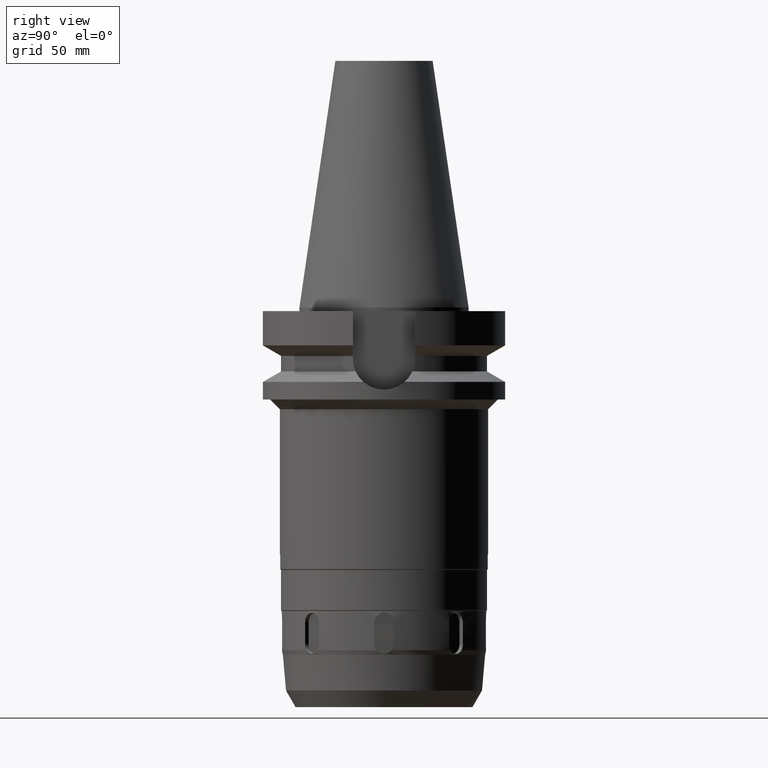
[diagram: clean part render]
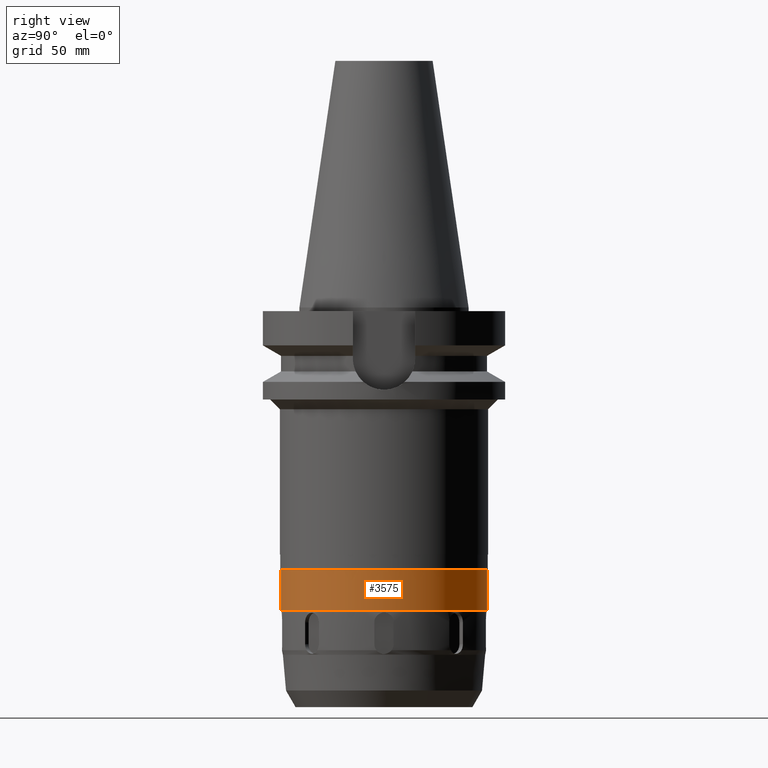
[diagram: same view with one face highlighted and labeled with its STEP entity id]
A machine part, right view. The second image highlights one B-rep face of the part: STEP entity #3575.
In plain terms, the highlighted cylindrical surface (partial cylindrical patch) has radius 42.5 mm, axis along (0, 0, -1).
Its self-contained STEP definition (entity closure, byte-faithful):
#1221=CARTESIAN_POINT('',(0.E0,0.E0,-1.25E2));
#1222=DIRECTION('',(0.E0,0.E0,1.E0));
#1223=DIRECTION('',(0.E0,-1.E0,0.E0));
#1224=AXIS2_PLACEMENT_3D('',#1221,#1222,#1223);
#1252=DIRECTION('',(0.E0,0.E0,-1.E0));
#1253=VECTOR('',#1252,1.665E1);
#1254=CARTESIAN_POINT('',(0.E0,-4.25E1,-1.0835E2));
#1255=LINE('',#1254,#1253);
#1259=DIRECTION('',(0.E0,0.E0,-1.E0));
#1260=VECTOR('',#1259,1.665E1);
#1261=CARTESIAN_POINT('',(0.E0,4.25E1,-1.0835E2));
#1262=LINE('',#1261,#1260);
#1273=CARTESIAN_POINT('',(0.E0,0.E0,-1.0835E2));
#1274=DIRECTION('',(0.E0,0.E0,-1.E0));
#1275=DIRECTION('',(0.E0,1.E0,0.E0));
#1276=AXIS2_PLACEMENT_3D('',#1273,#1274,#1275);
#2646=CARTESIAN_POINT('',(0.E0,4.25E1,-1.25E2));
#2647=VERTEX_POINT('',#2646);
#2648=CARTESIAN_POINT('',(0.E0,-4.25E1,-1.25E2));
#2649=VERTEX_POINT('',#2648);
#2650=CARTESIAN_POINT('',(0.E0,4.25E1,-1.0835E2));
#2651=VERTEX_POINT('',#2650);
#2652=CARTESIAN_POINT('',(0.E0,-4.25E1,-1.0835E2));
#2653=VERTEX_POINT('',#2652);
#3563=CARTESIAN_POINT('',(0.E0,2.634705123686E-14,1.1514E2));
#3564=DIRECTION('',(0.E0,0.E0,-1.E0));
#3565=DIRECTION('',(0.E0,-1.E0,0.E0));
#3566=AXIS2_PLACEMENT_3D('',#3563,#3564,#3565);
#3567=CYLINDRICAL_SURFACE('',#3566,4.25E1);
#3568=ORIENTED_EDGE('',*,*,#3553,.T.);
#3569=ORIENTED_EDGE('',*,*,#3530,.F.);
#3570=ORIENTED_EDGE('',*,*,#3557,.F.);
#3572=ORIENTED_EDGE('',*,*,#3571,.F.);
#3573=EDGE_LOOP('',(#3568,#3569,#3570,#3572));
#3574=FACE_OUTER_BOUND('',#3573,.F.);
#1225=CIRCLE('',#1224,4.25E1);
#1277=CIRCLE('',#1276,4.25E1);
#3530=EDGE_CURVE('',#2649,#2647,#1225,.T.);
#3553=EDGE_CURVE('',#2651,#2647,#1262,.T.);
#3557=EDGE_CURVE('',#2653,#2649,#1255,.T.);
#3571=EDGE_CURVE('',#2651,#2653,#1277,.T.);
#3575=ADVANCED_FACE('',(#3574),#3567,.T.);